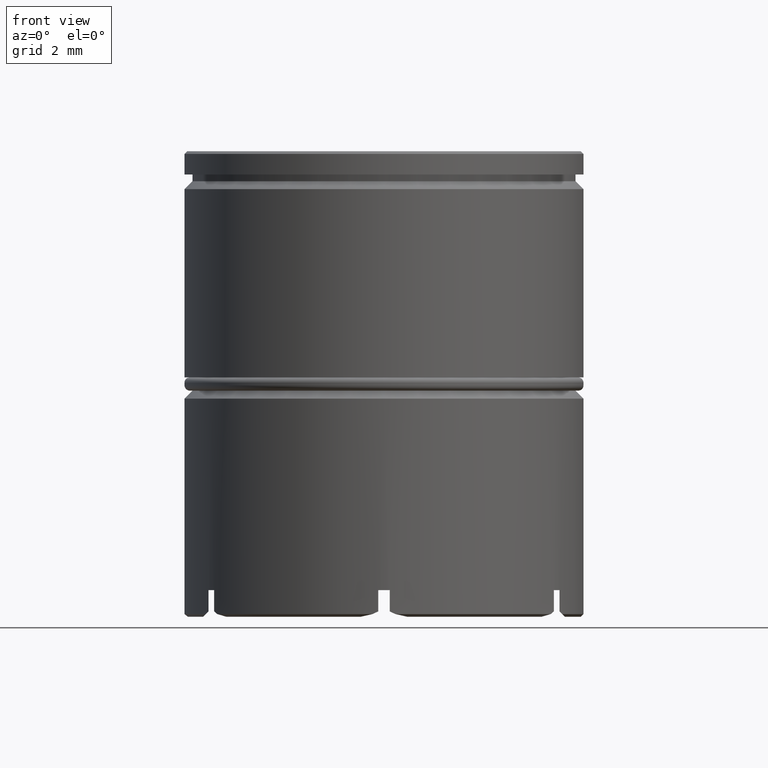
[diagram: clean part render]
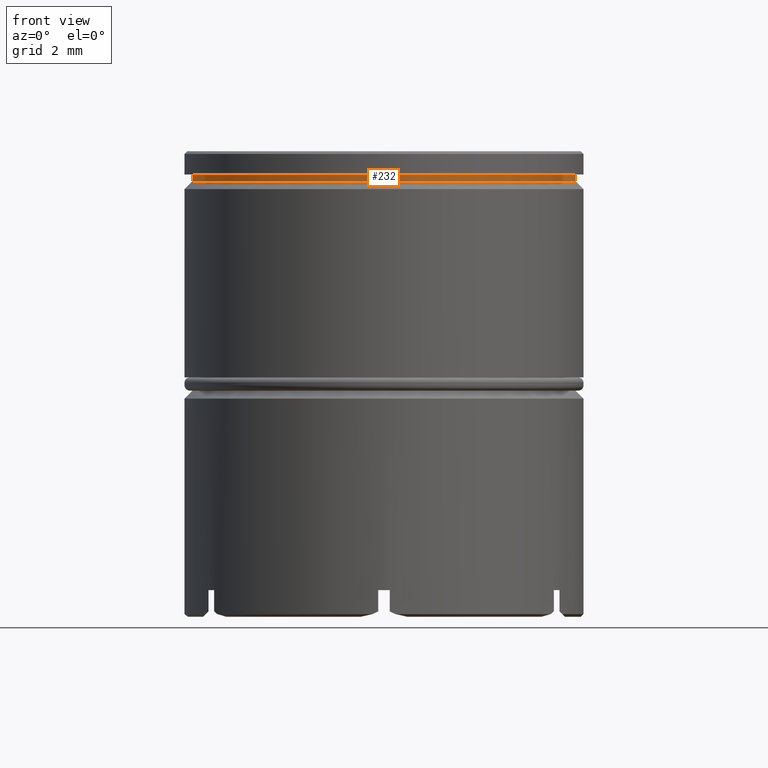
[diagram: same view with one face highlighted and labeled with its STEP entity id]
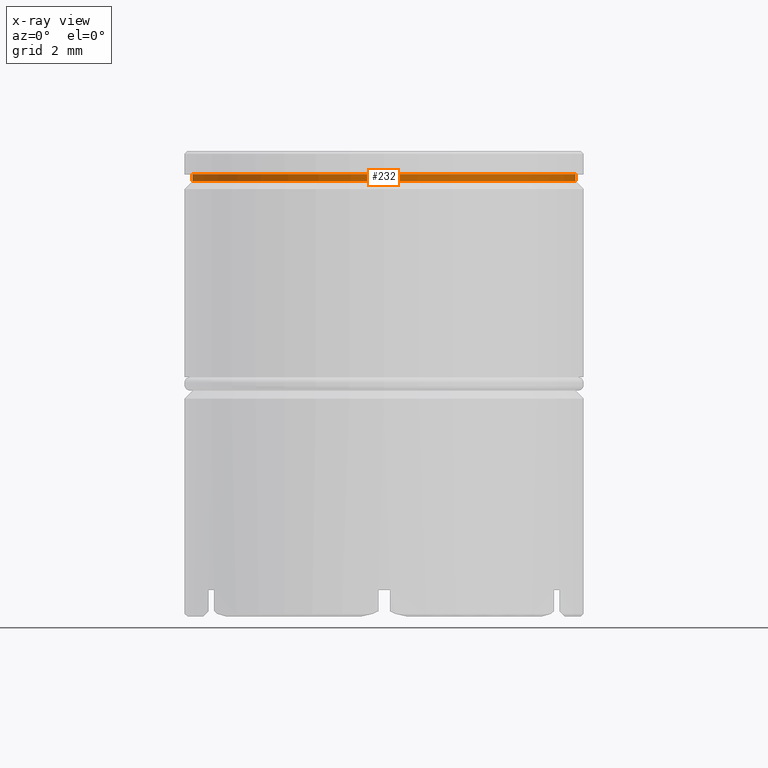
[diagram: x-ray of the same camera — body ghosted, the highlighted face saturated]
A machine part, front view. The second image highlights one B-rep face of the part: STEP entity #232.
The next image is the same camera in x-ray: the body ghosted, the highlighted face saturated — about 0% of this face is hidden behind the body in this view.
In plain terms, the highlighted cylindrical surface (partial cylindrical patch) has radius 7.2 mm, axis along (-0, -0, 1).
Its self-contained STEP definition (entity closure, byte-faithful):
#33 = DIRECTION ( 'NONE',  ( -0.000000000000000000, -0.000000000000000000, 1.000000000000000000 ) ) ;
#106 = VECTOR ( 'NONE', #33, 1000.000000000000000 ) ;
#156 = AXIS2_PLACEMENT_3D ( 'NONE', #193, #318, #1334 ) ;
#193 = CARTESIAN_POINT ( 'NONE',  ( 0.000000000000000000, 0.000000000000000000, 0.000000000000000000 ) ) ;
#232 = ADVANCED_FACE ( 'NONE', ( #327 ), #843, .T. ) ;
#253 = VERTEX_POINT ( 'NONE', #1099 ) ;
#254 = EDGE_CURVE ( 'NONE', #399, #253, #703, .T. ) ;
#268 = VERTEX_POINT ( 'NONE', #946 ) ;
#303 = CARTESIAN_POINT ( 'NONE',  ( -7.200000000000000178, 8.817456953860942303E-16, 0.000000000000000000 ) ) ;
#318 = DIRECTION ( 'NONE',  ( -0.000000000000000000, -0.000000000000000000, 1.000000000000000000 ) ) ;
#327 = FACE_OUTER_BOUND ( 'NONE', #1207, .T. ) ;
#399 = VERTEX_POINT ( 'NONE', #900 ) ;
#420 = AXIS2_PLACEMENT_3D ( 'NONE', #604, #1110, #476 ) ;
#459 = EDGE_CURVE ( 'NONE', #268, #461, #1062, .T. ) ;
#461 = VERTEX_POINT ( 'NONE', #1293 ) ;
#476 = DIRECTION ( 'NONE',  ( 1.000000000000000000, 0.000000000000000000, 0.000000000000000000 ) ) ;
#604 = CARTESIAN_POINT ( 'NONE',  ( 0.000000000000000000, 0.000000000000000000, -0.8749999999999998890 ) ) ;
#633 = ORIENTED_EDGE ( 'NONE', *, *, #459, .F. ) ;
#638 = VECTOR ( 'NONE', #1593, 1000.000000000000000 ) ;
#688 = EDGE_CURVE ( 'NONE', #461, #253, #928, .T. ) ;
#703 = LINE ( 'NONE', #1451, #638 ) ;
#765 = CARTESIAN_POINT ( 'NONE',  ( 0.000000000000000000, 0.000000000000000000, -1.125000000000000222 ) ) ;
#843 = CYLINDRICAL_SURFACE ( 'NONE', #156, 7.200000000000000178 ) ;
#900 = CARTESIAN_POINT ( 'NONE',  ( 7.200000000000000178, 0.000000000000000000, -1.125000000000000222 ) ) ;
#928 = CIRCLE ( 'NONE', #420, 7.200000000000000178 ) ;
#946 = CARTESIAN_POINT ( 'NONE',  ( -7.200000000000000178, 8.817456953860942303E-16, -1.125000000000000222 ) ) ;
#963 = ORIENTED_EDGE ( 'NONE', *, *, #1035, .T. ) ;
#1012 = AXIS2_PLACEMENT_3D ( 'NONE', #765, #1262, #1384 ) ;
#1035 = EDGE_CURVE ( 'NONE', #268, #399, #1064, .T. ) ;
#1062 = LINE ( 'NONE', #303, #106 ) ;
#1064 = CIRCLE ( 'NONE', #1012, 7.200000000000000178 ) ;
#1099 = CARTESIAN_POINT ( 'NONE',  ( 7.200000000000000178, 0.000000000000000000, -0.8749999999999998890 ) ) ;
#1110 = DIRECTION ( 'NONE',  ( -0.000000000000000000, -0.000000000000000000, 1.000000000000000000 ) ) ;
#1207 = EDGE_LOOP ( 'NONE', ( #633, #963, #1425, #1481 ) ) ;
#1262 = DIRECTION ( 'NONE',  ( -0.000000000000000000, -0.000000000000000000, 1.000000000000000000 ) ) ;
#1293 = CARTESIAN_POINT ( 'NONE',  ( -7.200000000000000178, 8.817456953860942303E-16, -0.8749999999999998890 ) ) ;
#1334 = DIRECTION ( 'NONE',  ( 1.000000000000000000, 0.000000000000000000, 0.000000000000000000 ) ) ;
#1384 = DIRECTION ( 'NONE',  ( 1.000000000000000000, 0.000000000000000000, 0.000000000000000000 ) ) ;
#1425 = ORIENTED_EDGE ( 'NONE', *, *, #254, .T. ) ;
#1451 = CARTESIAN_POINT ( 'NONE',  ( 7.200000000000000178, 0.000000000000000000, 0.000000000000000000 ) ) ;
#1481 = ORIENTED_EDGE ( 'NONE', *, *, #688, .F. ) ;
#1593 = DIRECTION ( 'NONE',  ( -0.000000000000000000, -0.000000000000000000, 1.000000000000000000 ) ) ;